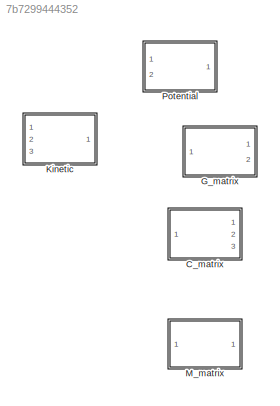
MODEL slx_7b7299444352
KIND model
CONFIG AbsTol = auto
CONFIG EnableMultiTasking = off
CONFIG FixedStep = auto
CONFIG MaxStep = auto
CONFIG MinStep = auto
CONFIG RelTol = 1e-3
CONFIG SampleTimeConstraint = Unconstrained
CONFIG Solver = VariableStepAuto
CONFIG SolverName = VariableStepAuto
CONFIG StartTime = 0.0
CONFIG StopTime = 10.0
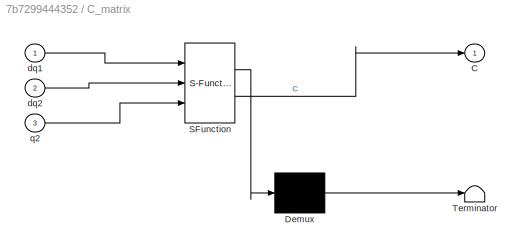
BLOCK [SubSystem] C_matrix
  ErrorFcn = Stateflow.Translate.translate
  PermitHierarchicalResolution = ExplicitOnly
  Ports = [3, 1]
  RequestExecContextInheritance = off
  SFBlockType = MATLAB Function
  TreatAsAtomicUnit = on
BLOCK [Demux] C_matrix/ Demux 
  Outputs = 1
  Ports = [1, 1]
BLOCK [S-Function] C_matrix/ SFunction 
  EnableBusSupport = off
  FunctionName = sf_sfun
  PortCounts = [3 2]
  Ports = [3, 2]
  SFcnIsStateOwnerBlock = off
  SFunctionDeploymentMode = off
  Tag = Stateflow S-Function 1
BLOCK [Terminator] C_matrix/ Terminator 
BLOCK [Outport] C_matrix/C
BLOCK [Inport] C_matrix/dq1
BLOCK [Inport] C_matrix/dq2
  Port = 2
BLOCK [Inport] C_matrix/q2
  Port = 3
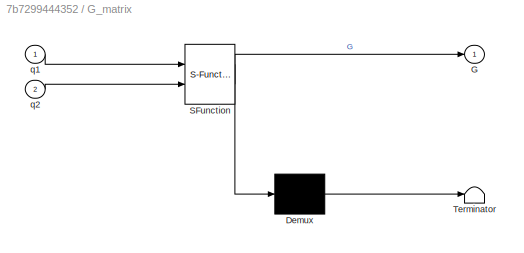
BLOCK [SubSystem] G_matrix
  ErrorFcn = Stateflow.Translate.translate
  PermitHierarchicalResolution = ExplicitOnly
  Ports = [2, 1]
  RequestExecContextInheritance = off
  SFBlockType = MATLAB Function
  TreatAsAtomicUnit = on
BLOCK [Demux] G_matrix/ Demux 
  Outputs = 1
  Ports = [1, 1]
BLOCK [S-Function] G_matrix/ SFunction 
  EnableBusSupport = off
  FunctionName = sf_sfun
  PortCounts = [2 2]
  Ports = [2, 2]
  SFcnIsStateOwnerBlock = off
  SFunctionDeploymentMode = off
  Tag = Stateflow S-Function 3
BLOCK [Terminator] G_matrix/ Terminator 
BLOCK [Outport] G_matrix/G
BLOCK [Inport] G_matrix/q1
BLOCK [Inport] G_matrix/q2
  Port = 2
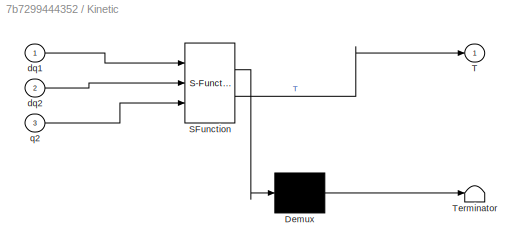
BLOCK [SubSystem] Kinetic
  ErrorFcn = Stateflow.Translate.translate
  PermitHierarchicalResolution = ExplicitOnly
  Ports = [3, 1]
  RequestExecContextInheritance = off
  SFBlockType = MATLAB Function
  TreatAsAtomicUnit = on
BLOCK [Demux] Kinetic/ Demux 
  Outputs = 1
  Ports = [1, 1]
BLOCK [S-Function] Kinetic/ SFunction 
  EnableBusSupport = off
  FunctionName = sf_sfun
  PortCounts = [3 2]
  Ports = [3, 2]
  SFcnIsStateOwnerBlock = off
  SFunctionDeploymentMode = off
  Tag = Stateflow S-Function 4
BLOCK [Terminator] Kinetic/ Terminator 
BLOCK [Outport] Kinetic/T
BLOCK [Inport] Kinetic/dq1
BLOCK [Inport] Kinetic/dq2
  Port = 2
BLOCK [Inport] Kinetic/q2
  Port = 3
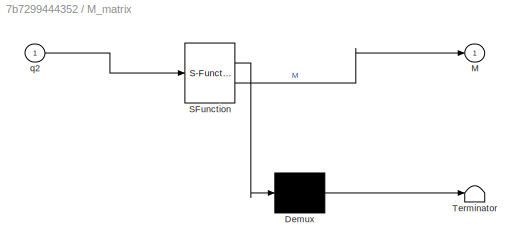
BLOCK [SubSystem] M_matrix
  ErrorFcn = Stateflow.Translate.translate
  PermitHierarchicalResolution = ExplicitOnly
  Ports = [1, 1]
  RequestExecContextInheritance = off
  SFBlockType = MATLAB Function
  TreatAsAtomicUnit = on
BLOCK [Demux] M_matrix/ Demux 
  Outputs = 1
  Ports = [1, 1]
BLOCK [S-Function] M_matrix/ SFunction 
  EnableBusSupport = off
  FunctionName = sf_sfun
  PortCounts = [1 2]
  Ports = [1, 2]
  SFcnIsStateOwnerBlock = off
  SFunctionDeploymentMode = off
  Tag = Stateflow S-Function 2
BLOCK [Terminator] M_matrix/ Terminator 
BLOCK [Outport] M_matrix/M
BLOCK [Inport] M_matrix/q2
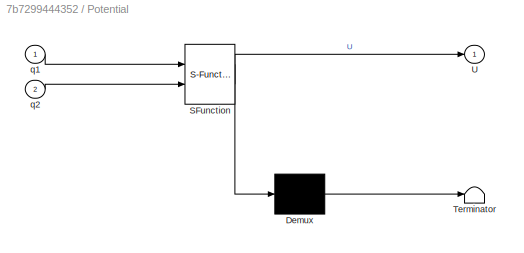
BLOCK [SubSystem] Potential
  ErrorFcn = Stateflow.Translate.translate
  PermitHierarchicalResolution = ExplicitOnly
  Ports = [2, 1]
  RequestExecContextInheritance = off
  SFBlockType = MATLAB Function
  TreatAsAtomicUnit = on
BLOCK [Demux] Potential/ Demux 
  Outputs = 1
  Ports = [1, 1]
BLOCK [S-Function] Potential/ SFunction 
  EnableBusSupport = off
  FunctionName = sf_sfun
  PortCounts = [2 2]
  Ports = [2, 2]
  SFcnIsStateOwnerBlock = off
  SFunctionDeploymentMode = off
  Tag = Stateflow S-Function 5
BLOCK [Terminator] Potential/ Terminator 
BLOCK [Outport] Potential/U
BLOCK [Inport] Potential/q1
BLOCK [Inport] Potential/q2
  Port = 2
CHART M_matrix states=1 transitions=1
  STATE_LABEL 'eML_blk_kernel()'
  STATE_LABEL 'SCRIPT:\nfunction M = M_matrix(q2)\n%#codegen\n\n%    This function was generated by the Symbolic Math Toolbox version 8.5.\n%    04-Nov-2022 18:56:12\n\nt2 = cos(q2);\nt3 = t2./2.0;\nt4 = t3+3.341666666666667e-1;\nM = reshape([t2+1.668333333333333,t4,t4,3.341666666666667e-1],[2,2]);\n'
CHART G_matrix states=1 transitions=1
  STATE_LABEL 'eML_blk_kernel()'
  STATE_LABEL 'SCRIPT:\nfunction G = G_matrix(q1,q2)\n%#codegen\n\n%    This function was generated by the Symbolic Math Toolbox version 8.5.\n%    04-Nov-2022 18:56:13\n\nt2 = q1+q2;\nt3 = cos(t2);\nt4 = t3.*(9.81e+2./2.0e+2);\nG = [t4+cos(q1).*1.4715e+1;t4];\n'
CHART Kinetic states=1 transitions=1
  STATE_LABEL 'eML_blk_kernel()'
  STATE_LABEL 'SCRIPT:\nfunction T = Kinetic(dq1,dq2,q2)\n%#codegen\n\n%    This function was generated by the Symbolic Math Toolbox version 8.5.\n%    04-Nov-2022 18:56:13\n\nt2 = cos(q2);\nt3 = t2./2.0;\nt4 = t3+3.341666666666667e-1;\nT = dq2.*(dq2.*1.670833333333333e-1+(dq1.*t4)./2.0)+dq1.*((dq2.*t4)./2.0+(dq1.*(t2+1.668333333333333))./2.0);\n'
CHART Potential states=1 transitions=1
  STATE_LABEL 'eML_blk_kernel()'
  STATE_LABEL 'SCRIPT:\nfunction U = Potential(q1,q2)\n%#codegen\n\n%    This function was generated by the Symbolic Math Toolbox version 8.5.\n%    04-Nov-2022 18:56:13\n\nU = sin(q1+q2).*(9.81e+2./2.0e+2)+sin(q1).*1.4715e+1;\n'
CHART C_matrix states=1 transitions=1
  STATE_LABEL 'eML_blk_kernel()'
  STATE_LABEL 'SCRIPT:\nfunction C = C_matrix(dq1,dq2,q2)\n%#codegen\n\n%    This function was generated by the Symbolic Math Toolbox version 8.5.\n%    04-Nov-2022 18:56:12\n\nt2 = sin(q2);\nt3 = (dq1.*t2)./2.0;\nt4 = (dq2.*t2)./2.0;\nt5 = -t4;\nC = reshape([t5,t3,-t3+t5,0.0],[2,2]);\n'
CHART  states=0 transitions=0
CHART  states=0 transitions=0
CHART  states=0 transitions=0
CHART  states=0 transitions=0
CHART  states=0 transitions=0
